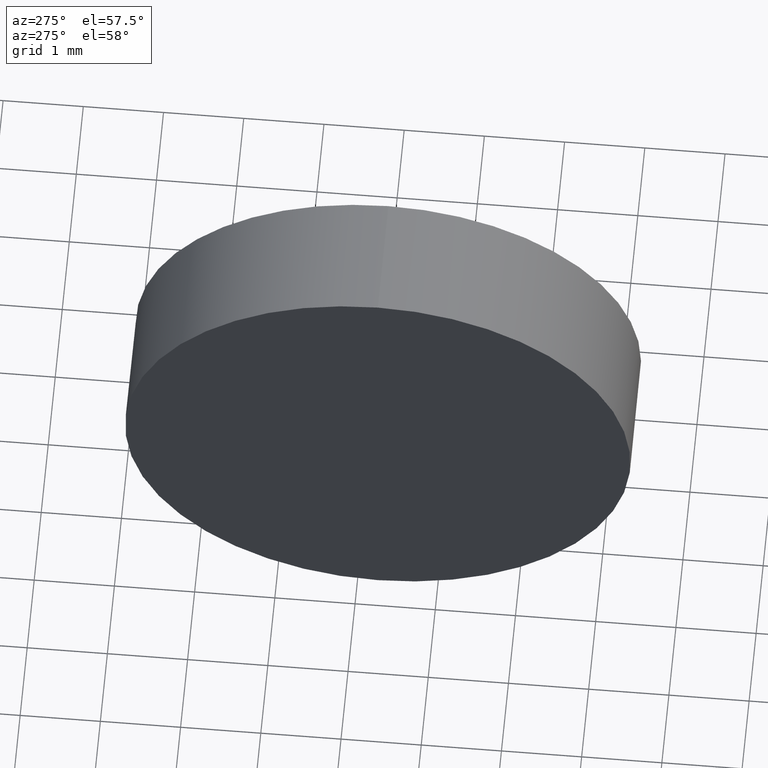
[diagram: clean part render]
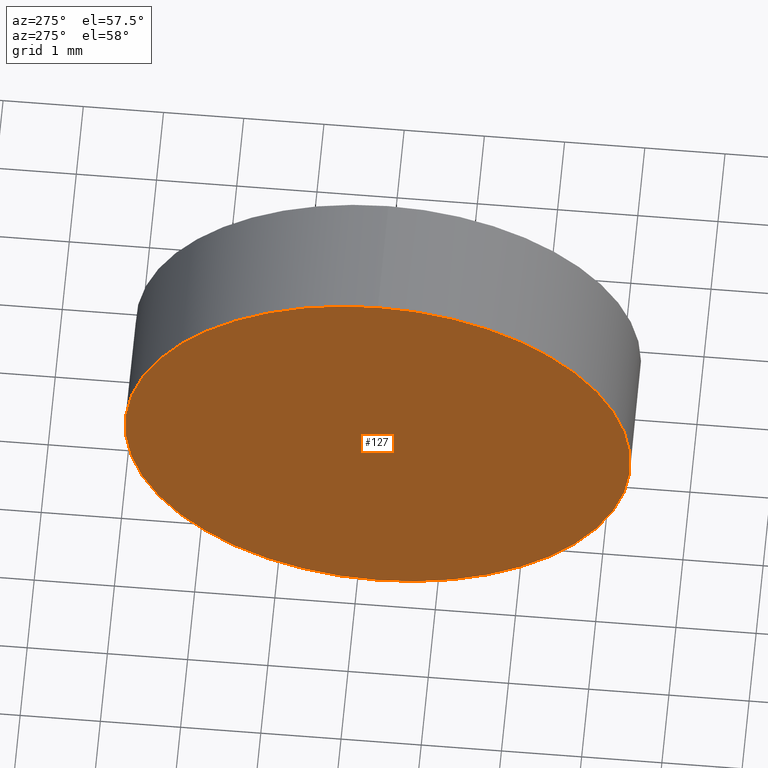
[diagram: same view with one face highlighted and labeled with its STEP entity id]
A machine part, auxiliary view. The second image highlights one B-rep face of the part: STEP entity #127.
In plain terms, the highlighted planar face has unit normal (1, 0, 0).
Its self-contained STEP definition (entity closure, byte-faithful):
#2 = CIRCLE ( 'NONE', #60, 3.149999999999999900 ) ;
#5 = ORIENTED_EDGE ( 'NONE', *, *, #44, .T. ) ;
#22 = CARTESIAN_POINT ( 'NONE',  ( 444.2844064456223800, 32.74152775011270900, 0.0000000000000000000 ) ) ;
#33 = CARTESIAN_POINT ( 'NONE',  ( 444.2844064456223800, 32.74152775011270900, 0.0000000000000000000 ) ) ;
#37 = ORIENTED_EDGE ( 'NONE', *, *, #75, .T. ) ;
#41 = DIRECTION ( 'NONE',  ( -1.000000000000000000, -0.0000000000000000000, -0.0000000000000000000 ) ) ;
#44 = EDGE_CURVE ( 'NONE', #133, #86, #2, .T. ) ;
#56 = CIRCLE ( 'NONE', #121, 3.149999999999999900 ) ;
#59 = PLANE ( 'NONE',  #153 ) ;
#60 = AXIS2_PLACEMENT_3D ( 'NONE', #33, #41, #87 ) ;
#67 = FACE_OUTER_BOUND ( 'NONE', #99, .T. ) ;
#75 = EDGE_CURVE ( 'NONE', #86, #133, #56, .T. ) ;
#86 = VERTEX_POINT ( 'NONE', #186 ) ;
#87 = DIRECTION ( 'NONE',  ( 0.0000000000000000000, 0.0000000000000000000, 1.000000000000000000 ) ) ;
#99 = EDGE_LOOP ( 'NONE', ( #5, #37 ) ) ;
#105 = DIRECTION ( 'NONE',  ( 0.0000000000000000000, 0.0000000000000000000, -1.000000000000000000 ) ) ;
#110 = DIRECTION ( 'NONE',  ( 0.0000000000000000000, 0.0000000000000000000, 1.000000000000000000 ) ) ;
#121 = AXIS2_PLACEMENT_3D ( 'NONE', #165, #128, #110 ) ;
#124 = DIRECTION ( 'NONE',  ( 1.000000000000000000, 0.0000000000000000000, 0.0000000000000000000 ) ) ;
#127 = ADVANCED_FACE ( 'NONE', ( #67 ), #59, .F. ) ;
#128 = DIRECTION ( 'NONE',  ( -1.000000000000000000, -0.0000000000000000000, -0.0000000000000000000 ) ) ;
#133 = VERTEX_POINT ( 'NONE', #139 ) ;
#139 = CARTESIAN_POINT ( 'NONE',  ( 444.2844064456223800, 32.74152775011270900, 3.149999999999999900 ) ) ;
#153 = AXIS2_PLACEMENT_3D ( 'NONE', #22, #124, #105 ) ;
#165 = CARTESIAN_POINT ( 'NONE',  ( 444.2844064456223800, 32.74152775011270900, 0.0000000000000000000 ) ) ;
#186 = CARTESIAN_POINT ( 'NONE',  ( 444.2844064456223800, 32.74152775011270900, -3.149999999999999900 ) ) ;